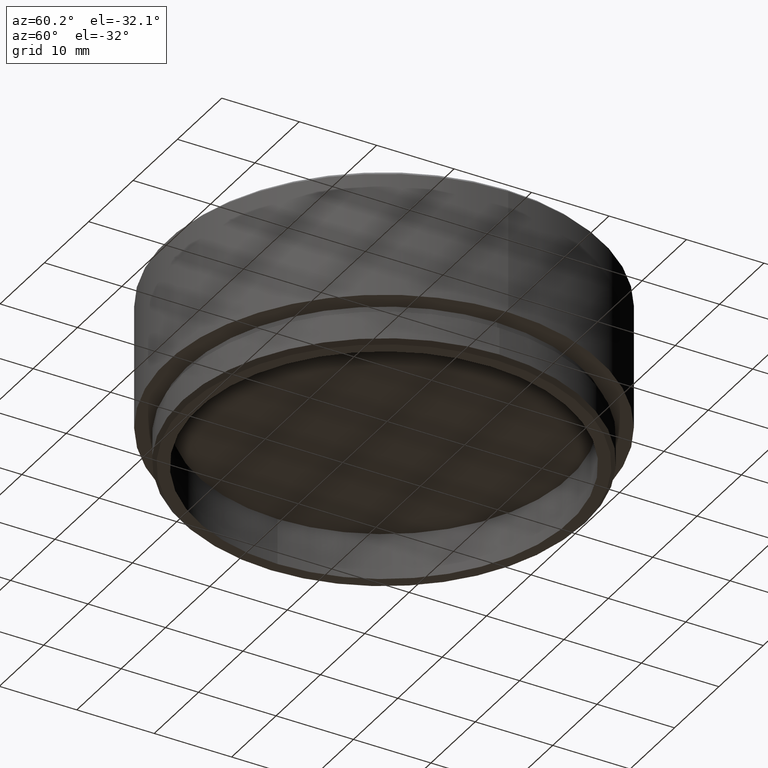
[diagram: clean part render]
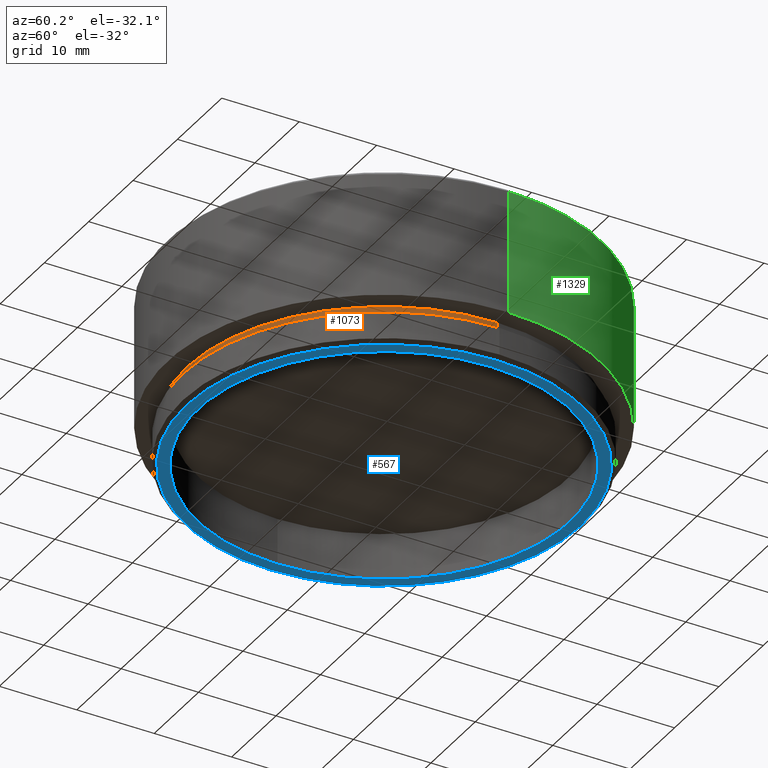
[diagram: same view with three faces highlighted in distinct colors, each labeled with its STEP entity id]
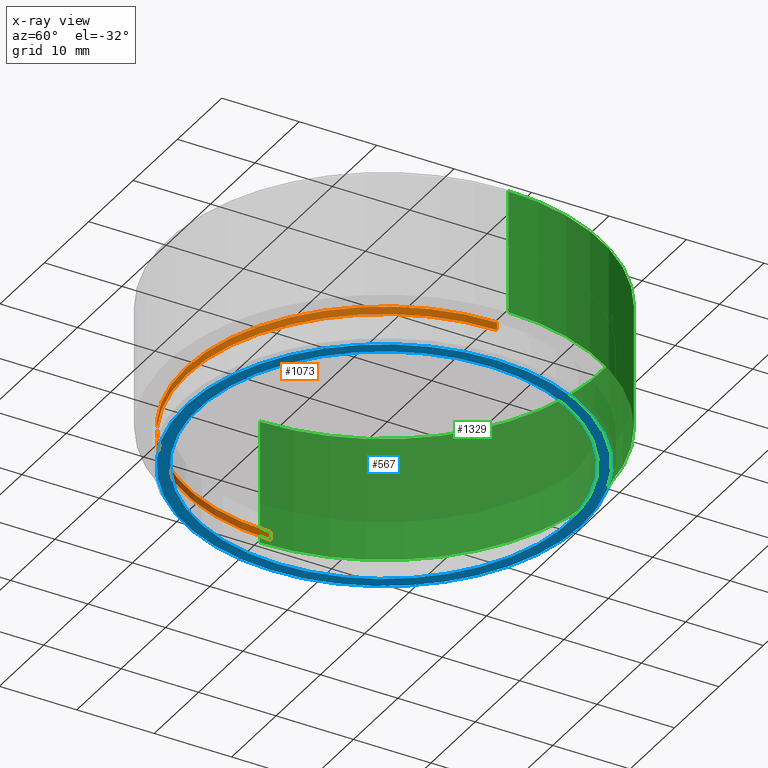
[diagram: x-ray of the same camera — body ghosted, the three highlighted faces saturated]
A machine part, auxiliary view with three faces highlighted in distinct colors.
The next image is the same camera in x-ray (body ghosted, the three faces saturated) — at least one of them is partly hidden behind the body in this view.
Their STEP definitions:

[orange] entity #1073 — the highlighted cylindrical surface (partial cylindrical patch) has radius 25.5 mm, axis along (0, 0, 1).
#97 = VECTOR ( 'NONE', #690, 1000.000000000000000 ) ;
#121 = EDGE_LOOP ( 'NONE', ( #882, #926, #1521, #1096 ) ) ;
#126 = DIRECTION ( 'NONE',  ( -1.000000000000000000, 0.000000000000000000, 0.000000000000000000 ) ) ;
#142 = CARTESIAN_POINT ( 'NONE',  ( 0.000000000000000000, 0.000000000000000000, 5.000000000000000000 ) ) ;
#143 = AXIS2_PLACEMENT_3D ( 'NONE', #1083, #1093, #795 ) ;
#194 = DIRECTION ( 'NONE',  ( -1.000000000000000000, 0.000000000000000000, 0.000000000000000000 ) ) ;
#225 = CARTESIAN_POINT ( 'NONE',  ( -25.50000000000000000, 3.122849337825750222E-15, 4.000000000000000000 ) ) ;
#247 = DIRECTION ( 'NONE',  ( 0.000000000000000000, 0.000000000000000000, -1.000000000000000000 ) ) ;
#279 = CARTESIAN_POINT ( 'NONE',  ( 25.50000000000000000, 0.000000000000000000, 4.000000000000000000 ) ) ;
#302 = EDGE_CURVE ( 'NONE', #1264, #773, #571, .T. ) ;
#423 = CARTESIAN_POINT ( 'NONE',  ( -25.50000000000000000, 3.122849337825750222E-15, 5.000000000000000000 ) ) ;
#571 = CIRCLE ( 'NONE', #1560, 25.50000000000000000 ) ;
#579 = VECTOR ( 'NONE', #768, 1000.000000000000000 ) ;
#629 = LINE ( 'NONE', #910, #579 ) ;
#680 = CARTESIAN_POINT ( 'NONE',  ( -25.50000000000000000, 3.122849337825750222E-15, 4.000000000000000000 ) ) ;
#689 = EDGE_CURVE ( 'NONE', #1264, #1089, #629, .T. ) ;
#690 = DIRECTION ( 'NONE',  ( 0.000000000000000000, 0.000000000000000000, 1.000000000000000000 ) ) ;
#768 = DIRECTION ( 'NONE',  ( 0.000000000000000000, 0.000000000000000000, 1.000000000000000000 ) ) ;
#773 = VERTEX_POINT ( 'NONE', #225 ) ;
#795 = DIRECTION ( 'NONE',  ( 1.000000000000000000, 0.000000000000000000, 0.000000000000000000 ) ) ;
#861 = AXIS2_PLACEMENT_3D ( 'NONE', #142, #247, #126 ) ;
#882 = ORIENTED_EDGE ( 'NONE', *, *, #1332, .F. ) ;
#903 = FACE_OUTER_BOUND ( 'NONE', #121, .T. ) ;
#910 = CARTESIAN_POINT ( 'NONE',  ( 25.50000000000000000, 0.000000000000000000, 4.000000000000000000 ) ) ;
#926 = ORIENTED_EDGE ( 'NONE', *, *, #302, .F. ) ;
#1022 = CARTESIAN_POINT ( 'NONE',  ( 0.000000000000000000, 0.000000000000000000, 4.000000000000000000 ) ) ;
#1073 = ADVANCED_FACE ( 'NONE', ( #903 ), #1427, .T. ) ;
#1083 = CARTESIAN_POINT ( 'NONE',  ( 0.000000000000000000, 0.000000000000000000, 4.000000000000000000 ) ) ;
#1089 = VERTEX_POINT ( 'NONE', #1324 ) ;
#1093 = DIRECTION ( 'NONE',  ( 0.000000000000000000, 0.000000000000000000, 1.000000000000000000 ) ) ;
#1096 = ORIENTED_EDGE ( 'NONE', *, *, #1525, .T. ) ;
#1114 = LINE ( 'NONE', #680, #97 ) ;
#1264 = VERTEX_POINT ( 'NONE', #279 ) ;
#1324 = CARTESIAN_POINT ( 'NONE',  ( 25.50000000000000000, 0.000000000000000000, 5.000000000000000000 ) ) ;
#1332 = EDGE_CURVE ( 'NONE', #773, #1339, #1114, .T. ) ;
#1339 = VERTEX_POINT ( 'NONE', #423 ) ;
#1427 = CYLINDRICAL_SURFACE ( 'NONE', #143, 25.50000000000000000 ) ;
#1521 = ORIENTED_EDGE ( 'NONE', *, *, #689, .T. ) ;
#1525 = EDGE_CURVE ( 'NONE', #1089, #1339, #1605, .T. ) ;
#1539 = DIRECTION ( 'NONE',  ( 0.000000000000000000, 0.000000000000000000, -1.000000000000000000 ) ) ;
#1560 = AXIS2_PLACEMENT_3D ( 'NONE', #1022, #1539, #194 ) ;
#1605 = CIRCLE ( 'NONE', #861, 25.50000000000000000 ) ;

[blue] entity #567 — the highlighted planar face has unit normal (0, 0, 1).
#4 = AXIS2_PLACEMENT_3D ( 'NONE', #1275, #834, #1504 ) ;
#16 = VERTEX_POINT ( 'NONE', #216 ) ;
#24 = AXIS2_PLACEMENT_3D ( 'NONE', #388, #811, #788 ) ;
#165 = EDGE_LOOP ( 'NONE', ( #192, #1440 ) ) ;
#192 = ORIENTED_EDGE ( 'NONE', *, *, #904, .T. ) ;
#199 = DIRECTION ( 'NONE',  ( 0.000000000000000000, 0.000000000000000000, 1.000000000000000000 ) ) ;
#216 = CARTESIAN_POINT ( 'NONE',  ( -25.49999999999998934, 3.153465507804433615E-15, 0.000000000000000000 ) ) ;
#219 = VERTEX_POINT ( 'NONE', #300 ) ;
#300 = CARTESIAN_POINT ( 'NONE',  ( 25.49999999999998934, 0.000000000000000000, 0.000000000000000000 ) ) ;
#352 = AXIS2_PLACEMENT_3D ( 'NONE', #1409, #199, #727 ) ;
#374 = CARTESIAN_POINT ( 'NONE',  ( 0.000000000000000000, 0.000000000000000000, 0.000000000000000000 ) ) ;
#388 = CARTESIAN_POINT ( 'NONE',  ( 0.000000000000000000, 0.000000000000000000, 0.000000000000000000 ) ) ;
#393 = CIRCLE ( 'NONE', #649, 24.00000000000000355 ) ;
#414 = FACE_BOUND ( 'NONE', #1356, .T. ) ;
#524 = CARTESIAN_POINT ( 'NONE',  ( 24.00000000000000355, 2.939152317953648289E-15, 0.000000000000000000 ) ) ;
#567 = ADVANCED_FACE ( 'NONE', ( #843, #414 ), #1495, .F. ) ;
#595 = ORIENTED_EDGE ( 'NONE', *, *, #1439, .T. ) ;
#649 = AXIS2_PLACEMENT_3D ( 'NONE', #1131, #1526, #1266 ) ;
#727 = DIRECTION ( 'NONE',  ( 1.000000000000000000, 0.000000000000000000, 0.000000000000000000 ) ) ;
#747 = EDGE_CURVE ( 'NONE', #16, #219, #1122, .T. ) ;
#762 = DIRECTION ( 'NONE',  ( 1.000000000000000000, 0.000000000000000000, 0.000000000000000000 ) ) ;
#770 = VERTEX_POINT ( 'NONE', #1077 ) ;
#788 = DIRECTION ( 'NONE',  ( 1.000000000000000000, 0.000000000000000000, 0.000000000000000000 ) ) ;
#806 = CIRCLE ( 'NONE', #1119, 25.49999999999998934 ) ;
#811 = DIRECTION ( 'NONE',  ( -0.000000000000000000, -0.000000000000000000, -1.000000000000000000 ) ) ;
#834 = DIRECTION ( 'NONE',  ( 0.000000000000000000, 0.000000000000000000, 1.000000000000000000 ) ) ;
#843 = FACE_OUTER_BOUND ( 'NONE', #165, .T. ) ;
#904 = EDGE_CURVE ( 'NONE', #219, #16, #806, .T. ) ;
#923 = DIRECTION ( 'NONE',  ( -0.000000000000000000, -0.000000000000000000, -1.000000000000000000 ) ) ;
#1072 = ORIENTED_EDGE ( 'NONE', *, *, #1694, .T. ) ;
#1077 = CARTESIAN_POINT ( 'NONE',  ( -24.00000000000000355, 0.000000000000000000, 0.000000000000000000 ) ) ;
#1119 = AXIS2_PLACEMENT_3D ( 'NONE', #374, #923, #762 ) ;
#1122 = CIRCLE ( 'NONE', #24, 25.49999999999998934 ) ;
#1131 = CARTESIAN_POINT ( 'NONE',  ( 0.000000000000000000, 0.000000000000000000, 0.000000000000000000 ) ) ;
#1135 = CIRCLE ( 'NONE', #352, 24.00000000000000355 ) ;
#1266 = DIRECTION ( 'NONE',  ( 1.000000000000000000, 0.000000000000000000, 0.000000000000000000 ) ) ;
#1275 = CARTESIAN_POINT ( 'NONE',  ( 0.000000000000000000, 0.000000000000000000, 0.000000000000000000 ) ) ;
#1356 = EDGE_LOOP ( 'NONE', ( #1072, #595 ) ) ;
#1409 = CARTESIAN_POINT ( 'NONE',  ( 0.000000000000000000, 0.000000000000000000, 0.000000000000000000 ) ) ;
#1439 = EDGE_CURVE ( 'NONE', #1479, #770, #1135, .T. ) ;
#1440 = ORIENTED_EDGE ( 'NONE', *, *, #747, .T. ) ;
#1479 = VERTEX_POINT ( 'NONE', #524 ) ;
#1495 = PLANE ( 'NONE',  #4 ) ;
#1504 = DIRECTION ( 'NONE',  ( 1.000000000000000000, 0.000000000000000000, -0.000000000000000000 ) ) ;
#1526 = DIRECTION ( 'NONE',  ( 0.000000000000000000, 0.000000000000000000, 1.000000000000000000 ) ) ;
#1694 = EDGE_CURVE ( 'NONE', #770, #1479, #393, .T. ) ;

[green] entity #1329 — the highlighted cylindrical surface (partial cylindrical patch) has radius 28 mm, axis along (-0, -0, -1).
#38 = CARTESIAN_POINT ( 'NONE',  ( 28.00000000000000000, 3.429011037612589276E-15, 20.99999999999999289 ) ) ;
#40 = VECTOR ( 'NONE', #979, 1000.000000000000000 ) ;
#62 = EDGE_LOOP ( 'NONE', ( #1507, #1496, #1407, #100 ) ) ;
#64 = CIRCLE ( 'NONE', #321, 28.00000000000000000 ) ;
#100 = ORIENTED_EDGE ( 'NONE', *, *, #1082, .F. ) ;
#144 = CYLINDRICAL_SURFACE ( 'NONE', #157, 28.00000000000000000 ) ;
#157 = AXIS2_PLACEMENT_3D ( 'NONE', #1008, #1241, #1354 ) ;
#321 = AXIS2_PLACEMENT_3D ( 'NONE', #406, #738, #1629 ) ;
#359 = DIRECTION ( 'NONE',  ( 0.000000000000000000, 0.000000000000000000, -1.000000000000000000 ) ) ;
#364 = DIRECTION ( 'NONE',  ( -0.000000000000000000, -0.000000000000000000, -1.000000000000000000 ) ) ;
#406 = CARTESIAN_POINT ( 'NONE',  ( 0.000000000000000000, 0.000000000000000000, 5.000000000000000000 ) ) ;
#433 = EDGE_CURVE ( 'NONE', #1454, #1286, #1247, .T. ) ;
#441 = FACE_OUTER_BOUND ( 'NONE', #62, .T. ) ;
#496 = LINE ( 'NONE', #1612, #1303 ) ;
#532 = AXIS2_PLACEMENT_3D ( 'NONE', #1573, #359, #925 ) ;
#534 = CARTESIAN_POINT ( 'NONE',  ( 28.00000000000000000, 3.429011037612589276E-15, 21.50000000000000000 ) ) ;
#537 = CARTESIAN_POINT ( 'NONE',  ( -28.00000000000000000, 0.000000000000000000, 20.99999999999999289 ) ) ;
#562 = EDGE_CURVE ( 'NONE', #1167, #1286, #64, .T. ) ;
#738 = DIRECTION ( 'NONE',  ( 0.000000000000000000, 0.000000000000000000, -1.000000000000000000 ) ) ;
#896 = EDGE_CURVE ( 'NONE', #1340, #1454, #1095, .T. ) ;
#925 = DIRECTION ( 'NONE',  ( 1.000000000000000000, 0.000000000000000000, 0.000000000000000000 ) ) ;
#979 = DIRECTION ( 'NONE',  ( -0.000000000000000000, -0.000000000000000000, -1.000000000000000000 ) ) ;
#1008 = CARTESIAN_POINT ( 'NONE',  ( 0.000000000000000000, 0.000000000000000000, 21.50000000000000000 ) ) ;
#1076 = CARTESIAN_POINT ( 'NONE',  ( -28.00000000000000000, 0.000000000000000000, 5.000000000000000000 ) ) ;
#1082 = EDGE_CURVE ( 'NONE', #1340, #1167, #496, .T. ) ;
#1095 = CIRCLE ( 'NONE', #532, 28.00000000000000000 ) ;
#1167 = VERTEX_POINT ( 'NONE', #1076 ) ;
#1241 = DIRECTION ( 'NONE',  ( -0.000000000000000000, -0.000000000000000000, -1.000000000000000000 ) ) ;
#1247 = LINE ( 'NONE', #534, #40 ) ;
#1286 = VERTEX_POINT ( 'NONE', #1628 ) ;
#1303 = VECTOR ( 'NONE', #364, 1000.000000000000000 ) ;
#1329 = ADVANCED_FACE ( 'NONE', ( #441 ), #144, .T. ) ;
#1340 = VERTEX_POINT ( 'NONE', #537 ) ;
#1354 = DIRECTION ( 'NONE',  ( -1.000000000000000000, 0.000000000000000000, 0.000000000000000000 ) ) ;
#1407 = ORIENTED_EDGE ( 'NONE', *, *, #562, .F. ) ;
#1454 = VERTEX_POINT ( 'NONE', #38 ) ;
#1496 = ORIENTED_EDGE ( 'NONE', *, *, #433, .T. ) ;
#1507 = ORIENTED_EDGE ( 'NONE', *, *, #896, .T. ) ;
#1573 = CARTESIAN_POINT ( 'NONE',  ( 0.000000000000000000, 0.000000000000000000, 20.99999999999999289 ) ) ;
#1612 = CARTESIAN_POINT ( 'NONE',  ( -28.00000000000000000, 0.000000000000000000, 21.50000000000000000 ) ) ;
#1628 = CARTESIAN_POINT ( 'NONE',  ( 28.00000000000000000, 3.429011037612589276E-15, 5.000000000000000000 ) ) ;
#1629 = DIRECTION ( 'NONE',  ( -1.000000000000000000, 0.000000000000000000, 0.000000000000000000 ) ) ;